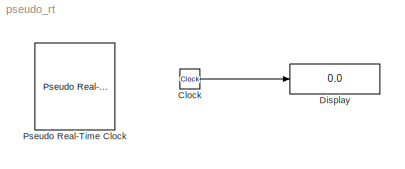
MODEL pseudo_rt
KIND model
BLOCK [Clock] Clock
  Priority = 2
  SID = 6
BLOCK [Display] Display
  Decimation = 1
  Lockdown = off
  Ports = [1]
  SID = 5
BLOCK [Reference] Pseudo Real-Time Clock  REF=CampusEnergyModeling/Data Acquisition/Pseudo Real-Time Clock
  Ports = []
  Priority = 0
  SID = 9
  SourceBlock = CampusEnergyModeling/Data Acquisition/Pseudo Real-Time Clock
  SourceType = Pseudo Real-Time Clock
  UserData = DataTag0
  UserDataPersistent = on
  enab = on
  rtv_action = Silent
  speedup = 1
LINE Clock:1 -> Display:1
